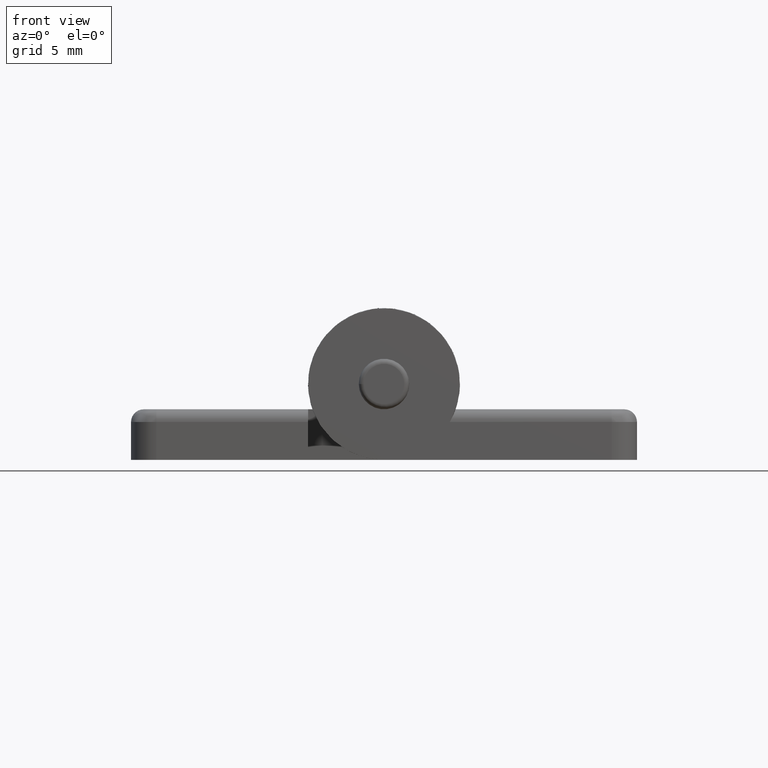
[diagram: clean part render]
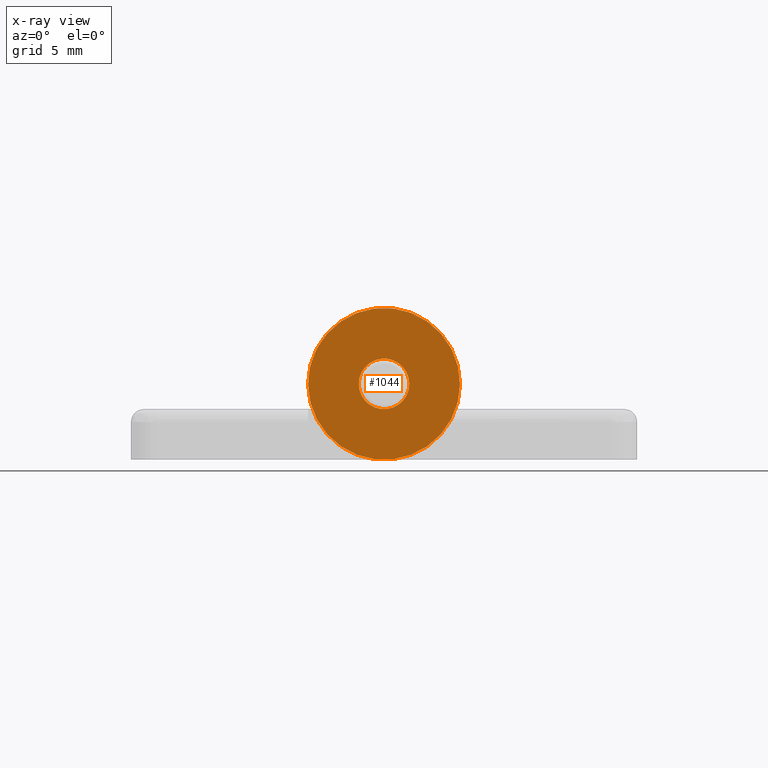
[diagram: x-ray — body ghosted, one internal face saturated and labeled with its STEP entity id]
A machine part, front view, then the same camera in x-ray: the body is ghosted and one INTERNAL B-rep face — a face not visible from any outside direction — is saturated and labeled: STEP entity #1044.
In plain terms, the highlighted planar face has unit normal (0, -1, -0).
Its self-contained STEP definition (entity closure, byte-faithful):
#56=FACE_BOUND('',#232,.T.);
#93=PLANE('',#1149);
#146=FACE_OUTER_BOUND('',#231,.T.);
#231=EDGE_LOOP('',(#846));
#232=EDGE_LOOP('',(#847));
#450=CIRCLE('',#1145,1.);
#452=CIRCLE('',#1148,3.);
#531=VERTEX_POINT('',#1719);
#533=VERTEX_POINT('',#1724);
#646=EDGE_CURVE('',#531,#531,#450,.T.);
#648=EDGE_CURVE('',#533,#533,#452,.T.);
#846=ORIENTED_EDGE('',*,*,#648,.T.);
#847=ORIENTED_EDGE('',*,*,#646,.T.);
#1044=ADVANCED_FACE('',(#146,#56),#93,.F.);
#1145=AXIS2_PLACEMENT_3D('',#1720,#1371,#1372);
#1148=AXIS2_PLACEMENT_3D('',#1725,#1377,#1378);
#1149=AXIS2_PLACEMENT_3D('',#1726,#1379,#1380);
#1371=DIRECTION('center_axis',(0.,0.,1.));
#1372=DIRECTION('ref_axis',(-1.,-1.22464679914735E-16,0.));
#1377=DIRECTION('center_axis',(0.,0.,-1.));
#1378=DIRECTION('ref_axis',(-1.,-1.22464679914735E-16,0.));
#1379=DIRECTION('center_axis',(0.,0.,1.));
#1380=DIRECTION('ref_axis',(1.,0.,0.));
#1719=CARTESIAN_POINT('',(1.,3.,-5.45));
#1720=CARTESIAN_POINT('Origin',(0.,3.,-5.45));
#1724=CARTESIAN_POINT('',(3.,3.,-5.45));
#1725=CARTESIAN_POINT('Origin',(0.,3.,-5.45));
#1726=CARTESIAN_POINT('Origin',(-1.07714991133209E-16,3.,-5.45));